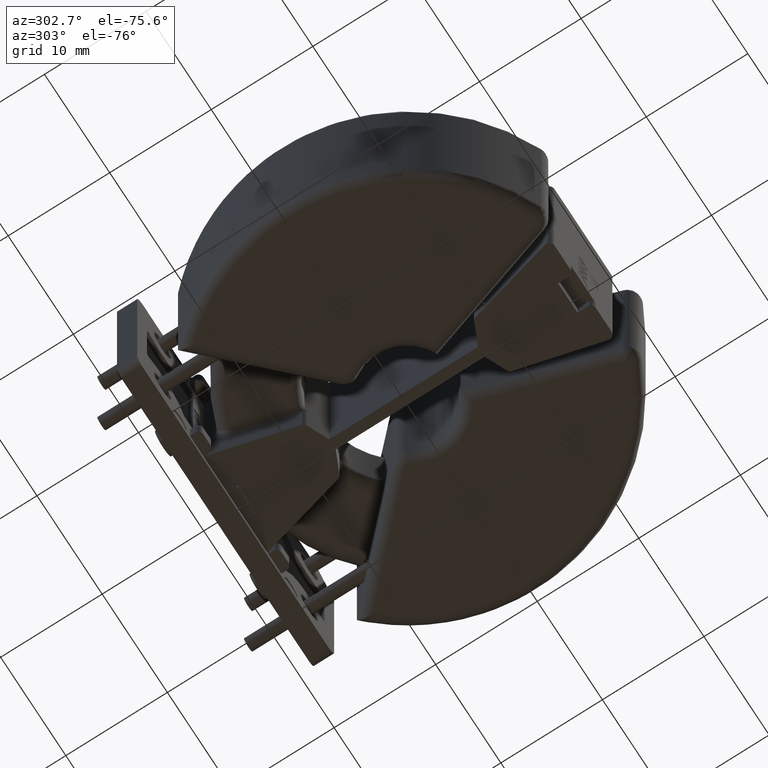
[diagram: clean part render]
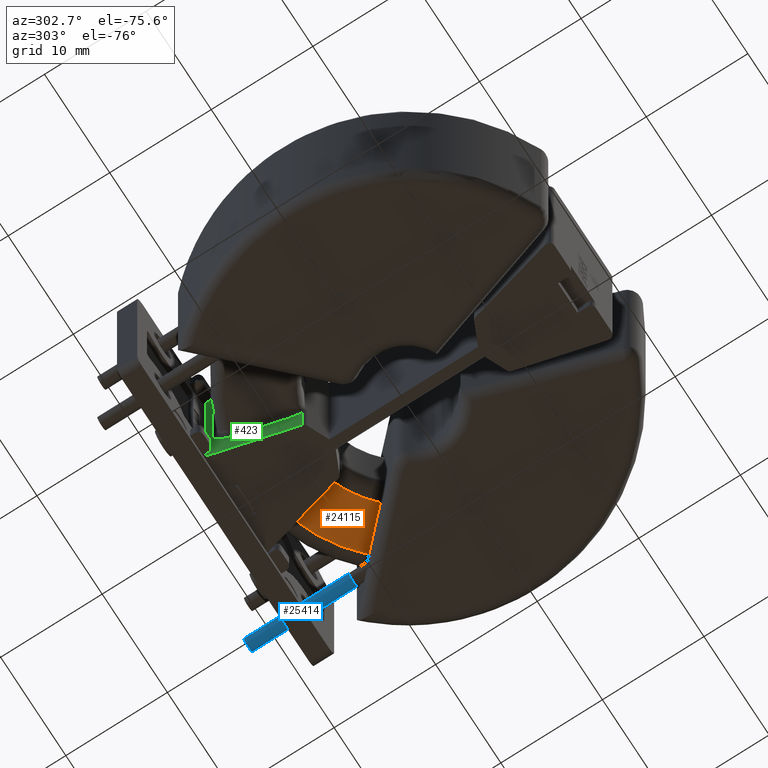
[diagram: same view with three faces highlighted in distinct colors, each labeled with its STEP entity id]
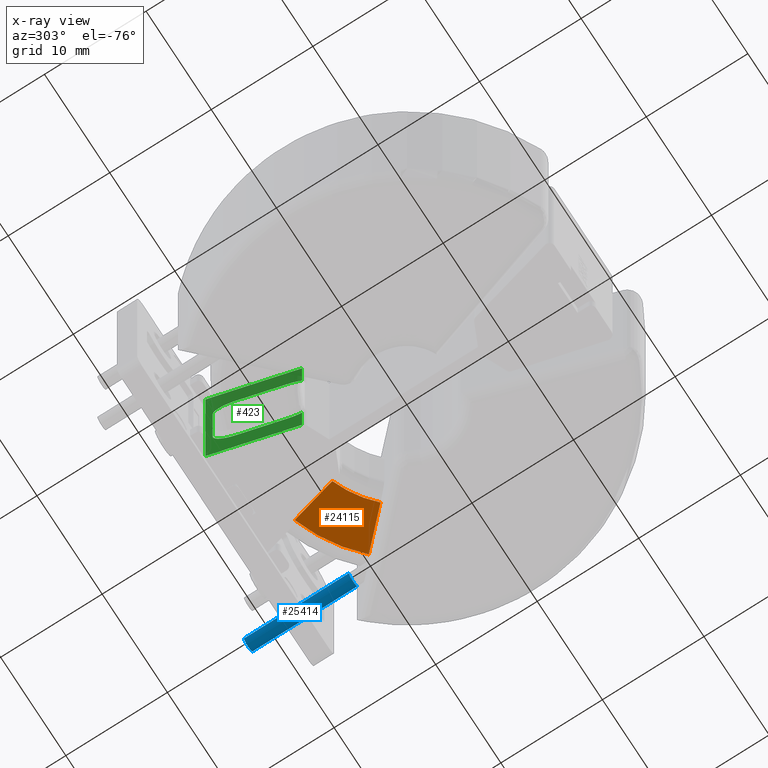
[diagram: x-ray of the same camera — body ghosted, the three highlighted faces saturated]
A machine part, auxiliary view with three faces highlighted in distinct colors.
The next image is the same camera in x-ray (body ghosted, the three faces saturated) — at least one of them is partly hidden behind the body in this view.
Their STEP definitions:

[orange] entity #24115 — the highlighted planar face has unit normal (0, 0, -1).
#593 = DIRECTION ( 'NONE',  ( -0.7071067811865435759, -0.7071067811865515695, 0.000000000000000000 ) ) ;
#1442 = DIRECTION ( 'NONE',  ( -1.000000000000000000, 0.000000000000000000, 0.000000000000000000 ) ) ;
#1764 = EDGE_CURVE ( 'NONE', #22190, #21242, #19601, .T. ) ;
#1934 = VECTOR ( 'NONE', #593, 999.9999999999998863 ) ;
#2049 = ORIENTED_EDGE ( 'NONE', *, *, #5605, .T. ) ;
#2071 = ORIENTED_EDGE ( 'NONE', *, *, #1764, .T. ) ;
#5055 = CARTESIAN_POINT ( 'NONE',  ( 7.247844507162072070, 7.247844507162154670, -0.1000000000000000472 ) ) ;
#5486 = DIRECTION ( 'NONE',  ( -0.000000000000000000, -0.000000000000000000, 1.000000000000000000 ) ) ;
#5605 = EDGE_CURVE ( 'NONE', #21242, #7491, #19217, .T. ) ;
#6032 = ORIENTED_EDGE ( 'NONE', *, *, #27267, .T. ) ;
#6120 = DIRECTION ( 'NONE',  ( 0.000000000000000000, 0.000000000000000000, -1.000000000000000000 ) ) ;
#7377 = CARTESIAN_POINT ( 'NONE',  ( 4.673326229108661245, 14.04279252699850566, -0.1000000000000000472 ) ) ;
#7491 = VERTEX_POINT ( 'NONE', #5055 ) ;
#8042 = PLANE ( 'NONE',  #14214 ) ;
#8531 = VERTEX_POINT ( 'NONE', #25008 ) ;
#8921 = EDGE_LOOP ( 'NONE', ( #2071, #2049, #6032, #17223 ) ) ;
#9912 = LINE ( 'NONE', #16119, #13016 ) ;
#10033 = CARTESIAN_POINT ( 'NONE',  ( 0.000000000000000000, 0.000000000000000000, -0.1000000000000000472 ) ) ;
#10146 = CARTESIAN_POINT ( 'NONE',  ( 10.46518036156084541, 10.46518036156096443, -0.09999999999999993616 ) ) ;
#10434 = AXIS2_PLACEMENT_3D ( 'NONE', #10033, #5486, #22034 ) ;
#13016 = VECTOR ( 'NONE', #18733, 999.9999999999998863 ) ;
#14214 = AXIS2_PLACEMENT_3D ( 'NONE', #22542, #6120, #24635 ) ;
#14326 = AXIS2_PLACEMENT_3D ( 'NONE', #17860, #18267, #1442 ) ;
#15065 = CARTESIAN_POINT ( 'NONE',  ( 0.000000000000000000, 0.000000000000000000, -0.1000000000000000056 ) ) ;
#16119 = CARTESIAN_POINT ( 'NONE',  ( 1.028569088582702129, -0.2620706320949978685, -0.1000000000000000056 ) ) ;
#16569 = CIRCLE ( 'NONE', #10434, 10.25000000000000178 ) ;
#17223 = ORIENTED_EDGE ( 'NONE', *, *, #21028, .T. ) ;
#17860 = CARTESIAN_POINT ( 'NONE',  ( 0.000000000000000000, 0.000000000000000000, -0.1000000000000000472 ) ) ;
#18267 = DIRECTION ( 'NONE',  ( 0.000000000000000000, 0.000000000000000000, -1.000000000000000000 ) ) ;
#18733 = DIRECTION ( 'NONE',  ( 0.2469031679626432496, 0.9690401568820617983, 0.000000000000000000 ) ) ;
#19217 = LINE ( 'NONE', #15065, #1934 ) ;
#19601 = CIRCLE ( 'NONE', #14326, 14.80000000000000249 ) ;
#21028 = EDGE_CURVE ( 'NONE', #8531, #22190, #9912, .T. ) ;
#21242 = VERTEX_POINT ( 'NONE', #10146 ) ;
#22034 = DIRECTION ( 'NONE',  ( -1.000000000000000000, 4.440892098500626951E-15, 0.000000000000000000 ) ) ;
#22190 = VERTEX_POINT ( 'NONE', #7377 ) ;
#22542 = CARTESIAN_POINT ( 'NONE',  ( 0.000000000000000000, 0.000000000000000000, -0.1000000000000000056 ) ) ;
#24115 = ADVANCED_FACE ( 'NONE', ( #26848 ), #8042, .T. ) ;
#24635 = DIRECTION ( 'NONE',  ( -1.000000000000000000, 0.000000000000000000, -0.000000000000000000 ) ) ;
#25008 = CARTESIAN_POINT ( 'NONE',  ( 3.545720725639769366, 9.617191093857323736, -0.1000000000000000472 ) ) ;
#26848 = FACE_OUTER_BOUND ( 'NONE', #8921, .T. ) ;
#27267 = EDGE_CURVE ( 'NONE', #7491, #8531, #16569, .T. ) ;

[blue] entity #25414 — the highlighted cylindrical surface (edge-blend (fillet) strip) has radius 0.65 mm, axis along (-0, 1, -0).
#68 = DIRECTION ( 'NONE',  ( -1.000000000000000000, 0.000000000000000000, 0.000000000000000000 ) ) ;
#3985 = CARTESIAN_POINT ( 'NONE',  ( 11.89999999999999503, 22.84499999999997755, -1.625000000000011324 ) ) ;
#4868 = CARTESIAN_POINT ( 'NONE',  ( 10.60000000000000320, -18.35200000000001452, -1.625000000000009326 ) ) ;
#6665 = DIRECTION ( 'NONE',  ( -1.589399859959779658E-16, 1.000000000000000000, -6.938893903907230843E-17 ) ) ;
#7873 = EDGE_LOOP ( 'NONE', ( #15329, #11296, #12122, #13821 ) ) ;
#8122 = CARTESIAN_POINT ( 'NONE',  ( 11.89999999999999680, 12.50000000000000178, -1.625000000000010880 ) ) ;
#8826 = CARTESIAN_POINT ( 'NONE',  ( 10.59999999999999787, 12.50000000000000178, -1.625000000000011324 ) ) ;
#8838 = VERTEX_POINT ( 'NONE', #8826 ) ;
#8875 = DIRECTION ( 'NONE',  ( 1.000000000000000000, 0.000000000000000000, 0.000000000000000000 ) ) ;
#9248 = FACE_OUTER_BOUND ( 'NONE', #7873, .T. ) ;
#9389 = VERTEX_POINT ( 'NONE', #8122 ) ;
#10666 = EDGE_CURVE ( 'NONE', #16779, #25759, #25032, .T. ) ;
#10939 = CARTESIAN_POINT ( 'NONE',  ( 11.90000000000000213, -18.35200000000001452, -1.625000000000009104 ) ) ;
#11016 = EDGE_CURVE ( 'NONE', #9389, #16779, #19211, .T. ) ;
#11194 = CARTESIAN_POINT ( 'NONE',  ( 11.24999999999999822, 12.50000000000000178, -1.625000000000010880 ) ) ;
#11296 = ORIENTED_EDGE ( 'NONE', *, *, #15568, .T. ) ;
#11817 = AXIS2_PLACEMENT_3D ( 'NONE', #11194, #17132, #8875 ) ;
#12122 = ORIENTED_EDGE ( 'NONE', *, *, #24320, .T. ) ;
#12451 = CARTESIAN_POINT ( 'NONE',  ( 10.59999999999999609, 22.84499999999997755, -1.625000000000011768 ) ) ;
#12769 = CARTESIAN_POINT ( 'NONE',  ( 11.24999999999999645, 22.84499999999997755, -1.625000000000011768 ) ) ;
#13233 = CARTESIAN_POINT ( 'NONE',  ( 11.25000000000000355, -18.35200000000001452, -1.625000000000009326 ) ) ;
#13821 = ORIENTED_EDGE ( 'NONE', *, *, #10666, .F. ) ;
#15198 = DIRECTION ( 'NONE',  ( -1.589399859959779658E-16, 1.000000000000000000, -6.938893903907230843E-17 ) ) ;
#15329 = ORIENTED_EDGE ( 'NONE', *, *, #11016, .F. ) ;
#15568 = EDGE_CURVE ( 'NONE', #9389, #8838, #23711, .T. ) ;
#15746 = AXIS2_PLACEMENT_3D ( 'NONE', #12769, #25612, #68 ) ;
#16779 = VERTEX_POINT ( 'NONE', #3985 ) ;
#17132 = DIRECTION ( 'NONE',  ( -1.589399859959779658E-16, 1.000000000000000000, -6.938893903907230843E-17 ) ) ;
#17509 = DIRECTION ( 'NONE',  ( -1.000000000000000000, 0.000000000000000000, 0.000000000000000000 ) ) ;
#19074 = LINE ( 'NONE', #4868, #19076 ) ;
#19076 = VECTOR ( 'NONE', #6665, 1000.000000000000000 ) ;
#19211 = LINE ( 'NONE', #10939, #24045 ) ;
#21648 = DIRECTION ( 'NONE',  ( -1.589399859959779658E-16, 1.000000000000000000, -6.938893903907230843E-17 ) ) ;
#22601 = AXIS2_PLACEMENT_3D ( 'NONE', #13233, #21648, #17509 ) ;
#23711 = CIRCLE ( 'NONE', #11817, 0.6499999999999995781 ) ;
#24045 = VECTOR ( 'NONE', #15198, 1000.000000000000000 ) ;
#24320 = EDGE_CURVE ( 'NONE', #8838, #25759, #19074, .T. ) ;
#25032 = CIRCLE ( 'NONE', #15746, 0.6499999999999995781 ) ;
#25414 = ADVANCED_FACE ( 'NONE', ( #9248 ), #25543, .T. ) ;
#25543 = CYLINDRICAL_SURFACE ( 'NONE', #22601, 0.6499999999999995781 ) ;
#25612 = DIRECTION ( 'NONE',  ( -1.589399859959779658E-16, 1.000000000000000000, -6.938893903907230843E-17 ) ) ;
#25759 = VERTEX_POINT ( 'NONE', #12451 ) ;

[green] entity #423 — the highlighted planar face has unit normal (0.969, 0.2469, 0).
#101 = CARTESIAN_POINT ( 'NONE',  ( -4.188806150667630845, 14.16624411097982872, 10.85000000000000320 ) ) ;
#236 = AXIS2_PLACEMENT_3D ( 'NONE', #8942, #6856, #25776 ) ;
#349 = CARTESIAN_POINT ( 'NONE',  ( -4.621073833220896709, 15.86279886308345688, 0.3916065438530442200 ) ) ;
#423 = ADVANCED_FACE ( 'NONE', ( #4454 ), #23287, .F. ) ;
#746 = EDGE_CURVE ( 'NONE', #23014, #12360, #15622, .T. ) ;
#1386 = VERTEX_POINT ( 'NONE', #26747 ) ;
#1557 = DIRECTION ( 'NONE',  ( 0.2469031679626433329, -0.9690401568820617983, -1.121038771459853906E-44 ) ) ;
#1588 = LINE ( 'NONE', #26964, #22584 ) ;
#1722 = B_SPLINE_CURVE_WITH_KNOTS ( 'NONE', 3,
 ( #9165, #13414, #5279, #20035, #7341, #21695 ),
 .UNSPECIFIED., .F., .F.,
 ( 4, 2, 4 ),
 ( 0.000000000000000000, 0.0006532048347554016317, 0.001306409669510803263 ),
 .UNSPECIFIED. ) ;
#1807 = VERTEX_POINT ( 'NONE', #25038 ) ;
#1868 = CARTESIAN_POINT ( 'NONE',  ( -4.841149853220117372, 16.72654841601868014, 14.55000000000000249 ) ) ;
#2454 = CARTESIAN_POINT ( 'NONE',  ( -4.437905923757134552, 15.14390545565103530, 10.59777708064334334 ) ) ;
#2601 = CARTESIAN_POINT ( 'NONE',  ( -2.850161209839293441, 8.912359706929025904, -0.4237193726595783749 ) ) ;
#2687 = CARTESIAN_POINT ( 'NONE',  ( -4.584146092048441368, 15.71786567168564197, 0.1686847796261111421 ) ) ;
#2722 = CARTESIAN_POINT ( 'NONE',  ( -3.006667621784224309, 9.526612651658799891, -0.5999999999999999778 ) ) ;
#2797 = CARTESIAN_POINT ( 'NONE',  ( -4.841149853220116483, 16.72654841601868014, -4.299999999999998046 ) ) ;
#2820 = VECTOR ( 'NONE', #17698, 999.9999999999998863 ) ;
#3497 = VERTEX_POINT ( 'NONE', #8936 ) ;
#3947 = DIRECTION ( 'NONE',  ( -0.2469031679626436104, 0.9690401568820616873, -0.000000000000000000 ) ) ;
#4335 = VECTOR ( 'NONE', #13720, 1000.000000000000000 ) ;
#4454 = FACE_OUTER_BOUND ( 'NONE', #11036, .T. ) ;
#4890 = CARTESIAN_POINT ( 'NONE',  ( -4.436374221333937662, 15.13789386345998267, -0.3368065490180052746 ) ) ;
#5264 = ORIENTED_EDGE ( 'NONE', *, *, #5798, .T. ) ;
#5279 = CARTESIAN_POINT ( 'NONE',  ( -2.953615912103145558, 9.318396461091348115, 10.81475968378430252 ) ) ;
#5560 = CARTESIAN_POINT ( 'NONE',  ( -4.841149853220117372, 16.72654841601868014, 14.55000000000000249 ) ) ;
#5677 = B_SPLINE_CURVE_WITH_KNOTS ( 'NONE', 3,
 ( #15395, #15263, #21364, #19000, #13077, #17061, #25783, #6864, #17478, #11002, #2454, #25521, #6597, #101 ),
 .UNSPECIFIED., .F., .F.,
 ( 4, 2, 2, 2, 2, 2, 4 ),
 ( 0.000000000000000000, 0.0003909921294472850305, 0.0007819842588945700610, 0.001172976388341855037, 0.001563968517789140122, 0.002345952776683710075, 0.003127937035578280244 ),
 .UNSPECIFIED. ) ;
#5683 = ORIENTED_EDGE ( 'NONE', *, *, #8419, .F. ) ;
#5798 = EDGE_CURVE ( 'NONE', #1807, #9065, #9175, .T. ) ;
#5831 = LINE ( 'NONE', #5560, #16417 ) ;
#5876 = LINE ( 'NONE', #10144, #13132 ) ;
#6597 = CARTESIAN_POINT ( 'NONE',  ( -4.254087373202438016, 14.42245842628643615, 10.85000000000000497 ) ) ;
#6688 = CARTESIAN_POINT ( 'NONE',  ( -4.316703977752629484, 14.66821470716947928, -0.5364716515452893075 ) ) ;
#6856 = DIRECTION ( 'NONE',  ( 0.9690401568820616873, 0.2469031679626436104, 0.000000000000000000 ) ) ;
#6864 = CARTESIAN_POINT ( 'NONE',  ( -4.582435521455710870, 15.71115206161243272, 10.06951089924231901 ) ) ;
#6865 = CARTESIAN_POINT ( 'NONE',  ( -2.759229855072620197, 8.555474313291922428, -0.1882030636851097782 ) ) ;
#7341 = CARTESIAN_POINT ( 'NONE',  ( -2.802646659601715662, 8.725875638715805849, 10.57185861638387614 ) ) ;
#7741 = VERTEX_POINT ( 'NONE', #19911 ) ;
#7893 = LINE ( 'NONE', #14229, #9091 ) ;
#8021 = CARTESIAN_POINT ( 'NONE',  ( -3.061200647198738078, 9.740642677838646790, 10.85000000000000320 ) ) ;
#8023 = EDGE_CURVE ( 'NONE', #1386, #21448, #1588, .T. ) ;
#8233 = VECTOR ( 'NONE', #8548, 1000.000000000000000 ) ;
#8419 = EDGE_CURVE ( 'NONE', #13614, #7741, #5831, .T. ) ;
#8548 = DIRECTION ( 'NONE',  ( -0.2469031679626436104, 0.9690401568820616873, 0.000000000000000000 ) ) ;
#8776 = CARTESIAN_POINT ( 'NONE',  ( -4.670572672219313048, 16.05707082445319145, 0.8728455921648021754 ) ) ;
#8936 = CARTESIAN_POINT ( 'NONE',  ( -3.061200647198735858, 9.740642677838646790, -0.6000000000000000888 ) ) ;
#8942 = CARTESIAN_POINT ( 'NONE',  ( -5.000000000000000000, 17.35000000000000142, -4.499999999999998224 ) ) ;
#9065 = VERTEX_POINT ( 'NONE', #8021 ) ;
#9091 = VECTOR ( 'NONE', #24862, 1000.000000000000000 ) ;
#9165 = CARTESIAN_POINT ( 'NONE',  ( -3.061200647198738078, 9.740642677838646790, 10.85000000000000320 ) ) ;
#9175 = LINE ( 'NONE', #19636, #2820 ) ;
#10144 = CARTESIAN_POINT ( 'NONE',  ( -5.000000000000000000, 17.35000000000000142, -0.5999999999999998668 ) ) ;
#10370 = ORIENTED_EDGE ( 'NONE', *, *, #16901, .T. ) ;
#10426 = CARTESIAN_POINT ( 'NONE',  ( -4.188806150667629957, 14.16624411097982872, -0.6000000000000000888 ) ) ;
#10596 = ORIENTED_EDGE ( 'NONE', *, *, #17626, .T. ) ;
#10975 = CARTESIAN_POINT ( 'NONE',  ( -4.683735089101559446, 16.10873039053234734, 6.850000000000002309 ) ) ;
#11002 = CARTESIAN_POINT ( 'NONE',  ( -4.493071650729866029, 15.36041869507717550, 10.44894055587113613 ) ) ;
#11036 = EDGE_LOOP ( 'NONE', ( #17314, #19905, #16268, #21278, #22887, #18755, #10370, #5264, #10596, #17554, #5683, #23374 ) ) ;
#11095 = CARTESIAN_POINT ( 'NONE',  ( -4.683735089101558557, 16.10873039053234734, 1.400000000000000133 ) ) ;
#11158 = CARTESIAN_POINT ( 'NONE',  ( -2.759229855072619753, 8.555474313291922428, -4.299999999999998046 ) ) ;
#11417 = VERTEX_POINT ( 'NONE', #12490 ) ;
#12360 = VERTEX_POINT ( 'NONE', #24830 ) ;
#12490 = CARTESIAN_POINT ( 'NONE',  ( -2.759229855072623305, 8.555474313291922428, 10.43820306368511375 ) ) ;
#13028 = CARTESIAN_POINT ( 'NONE',  ( -4.253547126702831527, 14.42033807863334083, -0.5870863681833395908 ) ) ;
#13077 = CARTESIAN_POINT ( 'NONE',  ( -4.658418835593193918, 16.00936971211802984, 9.495010348511398135 ) ) ;
#13132 = VECTOR ( 'NONE', #3947, 1000.000000000000000 ) ;
#13180 = CARTESIAN_POINT ( 'NONE',  ( -4.490143142294678924, 15.34892494918123518, -0.1920389866375419308 ) ) ;
#13414 = CARTESIAN_POINT ( 'NONE',  ( -3.006667571913697046, 9.526612455928034962, 10.85000000000000320 ) ) ;
#13608 = EDGE_CURVE ( 'NONE', #3497, #23014, #5876, .T. ) ;
#13614 = VERTEX_POINT ( 'NONE', #1868 ) ;
#13720 = DIRECTION ( 'NONE',  ( -4.256270054397946562E-44, -0.000000000000000000, 1.000000000000000000 ) ) ;
#14020 = DIRECTION ( 'NONE',  ( 0.000000000000000000, -0.000000000000000000, 1.000000000000000000 ) ) ;
#14229 = CARTESIAN_POINT ( 'NONE',  ( -4.841149853220117372, 16.72654841601868014, -4.499999999999998224 ) ) ;
#14456 = EDGE_CURVE ( 'NONE', #11417, #7741, #21721, .T. ) ;
#15081 = CARTESIAN_POINT ( 'NONE',  ( -4.683735089101559446, 16.10873039053235090, 1.135572393035714001 ) ) ;
#15263 = CARTESIAN_POINT ( 'NONE',  ( -4.683735089101558557, 16.10873039053234734, 8.982208586367617542 ) ) ;
#15395 = CARTESIAN_POINT ( 'NONE',  ( -4.683735089101559446, 16.10873039053234734, 8.850000000000003197 ) ) ;
#15482 = CARTESIAN_POINT ( 'NONE',  ( -2.759229855072620197, 8.555474313291922428, -0.1882030636851097782 ) ) ;
#15622 = B_SPLINE_CURVE_WITH_KNOTS ( 'NONE', 3,
 ( #25742, #21195, #13028, #6688, #17020, #19235, #4890, #13180, #25484, #2687, #349, #8776, #15081, #11095 ),
 .UNSPECIFIED., .F., .F.,
 ( 4, 2, 2, 2, 2, 2, 4 ),
 ( 0.000000000000000000, 0.0003909930606069283456, 0.0007819861212138566912, 0.001172979181820784983, 0.001563972242427713382, 0.002345958363641569965, 0.003127944484855426765 ),
 .UNSPECIFIED. ) ;
#16268 = ORIENTED_EDGE ( 'NONE', *, *, #19012, .T. ) ;
#16417 = VECTOR ( 'NONE', #1557, 999.9999999999998863 ) ;
#16901 = EDGE_CURVE ( 'NONE', #19628, #1807, #5677, .T. ) ;
#17020 = CARTESIAN_POINT ( 'NONE',  ( -4.348086114120393475, 14.79138263004406006, -0.4981643110206377956 ) ) ;
#17061 = CARTESIAN_POINT ( 'NONE',  ( -4.633565831516789579, 15.91182718494869519, 9.737245693266636692 ) ) ;
#17314 = ORIENTED_EDGE ( 'NONE', *, *, #21575, .F. ) ;
#17478 = CARTESIAN_POINT ( 'NONE',  ( -4.561534916018867847, 15.62912182223328372, 10.17238767555580026 ) ) ;
#17554 = ORIENTED_EDGE ( 'NONE', *, *, #14456, .T. ) ;
#17626 = EDGE_CURVE ( 'NONE', #9065, #11417, #1722, .T. ) ;
#17698 = DIRECTION ( 'NONE',  ( 0.2469031679626433606, -0.9690401568820617983, -1.121038771459853906E-44 ) ) ;
#17854 = CARTESIAN_POINT ( 'NONE',  ( -2.759229855072623305, 8.555474313291922428, 14.75000000000000355 ) ) ;
#18755 = ORIENTED_EDGE ( 'NONE', *, *, #19979, .T. ) ;
#19000 = CARTESIAN_POINT ( 'NONE',  ( -4.667942551483701408, 16.04674818407847070, 9.367937289662238598 ) ) ;
#19012 = EDGE_CURVE ( 'NONE', #21448, #3497, #25020, .T. ) ;
#19235 = CARTESIAN_POINT ( 'NONE',  ( -4.407968168635127526, 15.02640640871893396, -0.3980707324540634362 ) ) ;
#19550 = CARTESIAN_POINT ( 'NONE',  ( -3.061200647198735858, 9.740642677838646790, -0.6000000000000000888 ) ) ;
#19628 = VERTEX_POINT ( 'NONE', #27307 ) ;
#19636 = CARTESIAN_POINT ( 'NONE',  ( -2.700000000000000178, 8.323010272731858450, 10.85000000000000320 ) ) ;
#19905 = ORIENTED_EDGE ( 'NONE', *, *, #8023, .T. ) ;
#19911 = CARTESIAN_POINT ( 'NONE',  ( -2.759229855072623305, 8.555474313291922428, 14.55000000000000249 ) ) ;
#19979 = EDGE_CURVE ( 'NONE', #12360, #19628, #25496, .T. ) ;
#20035 = CARTESIAN_POINT ( 'NONE',  ( -2.850455599862213862, 8.913515122456278306, 10.67426998739443533 ) ) ;
#21195 = CARTESIAN_POINT ( 'NONE',  ( -4.221447941313654084, 14.29435589743257040, -0.5999999999999999778 ) ) ;
#21278 = ORIENTED_EDGE ( 'NONE', *, *, #13608, .T. ) ;
#21364 = CARTESIAN_POINT ( 'NONE',  ( -4.680523805111486801, 16.09612681331943307, 9.112201345127122210 ) ) ;
#21365 = CARTESIAN_POINT ( 'NONE',  ( -2.953302779842052139, 9.317167486437375246, -0.5644820603775180246 ) ) ;
#21448 = VERTEX_POINT ( 'NONE', #15482 ) ;
#21575 = EDGE_CURVE ( 'NONE', #1386, #24337, #21649, .T. ) ;
#21649 = LINE ( 'NONE', #11158, #8233 ) ;
#21695 = CARTESIAN_POINT ( 'NONE',  ( -2.759229855072623305, 8.555474313291922428, 10.43820306368511375 ) ) ;
#21721 = LINE ( 'NONE', #17854, #4335 ) ;
#21730 = VECTOR ( 'NONE', #23135, 1000.000000000000000 ) ;
#22584 = VECTOR ( 'NONE', #14020, 1000.000000000000000 ) ;
#22887 = ORIENTED_EDGE ( 'NONE', *, *, #746, .T. ) ;
#23014 = VERTEX_POINT ( 'NONE', #10426 ) ;
#23135 = DIRECTION ( 'NONE',  ( -0.000000000000000000, 0.000000000000000000, 1.000000000000000000 ) ) ;
#23287 = PLANE ( 'NONE',  #236 ) ;
#23374 = ORIENTED_EDGE ( 'NONE', *, *, #26909, .T. ) ;
#24337 = VERTEX_POINT ( 'NONE', #2797 ) ;
#24830 = CARTESIAN_POINT ( 'NONE',  ( -4.683735089101558557, 16.10873039053234734, 1.400000000000000133 ) ) ;
#24862 = DIRECTION ( 'NONE',  ( -0.000000000000000000, 0.000000000000000000, -1.000000000000000000 ) ) ;
#25020 = B_SPLINE_CURVE_WITH_KNOTS ( 'NONE', 3,
 ( #6865, #25382, #2601, #21365, #2722, #19550 ),
 .UNSPECIFIED., .F., .F.,
 ( 4, 2, 4 ),
 ( 0.000000000000000000, 0.0006531979792092669490, 0.001306395958418533898 ),
 .UNSPECIFIED. ) ;
#25038 = CARTESIAN_POINT ( 'NONE',  ( -4.188806150667630845, 14.16624411097982872, 10.85000000000000320 ) ) ;
#25382 = CARTESIAN_POINT ( 'NONE',  ( -2.802646867159386268, 8.725876453333622607, -0.3218592553354430175 ) ) ;
#25484 = CARTESIAN_POINT ( 'NONE',  ( -4.515620900735189736, 15.44891949862311797, -0.1077212887808851605 ) ) ;
#25496 = LINE ( 'NONE', #10975, #21730 ) ;
#25521 = CARTESIAN_POINT ( 'NONE',  ( -4.318965116916340108, 14.67708917673589397, 10.79709101559284257 ) ) ;
#25742 = CARTESIAN_POINT ( 'NONE',  ( -4.188806150667629957, 14.16624411097982872, -0.6000000000000000888 ) ) ;
#25776 = DIRECTION ( 'NONE',  ( -0.2469031679626436104, 0.9690401568820616873, 0.000000000000000000 ) ) ;
#25783 = CARTESIAN_POINT ( 'NONE',  ( -4.618358866701954391, 15.85214322183285596, 9.852122680838988344 ) ) ;
#26747 = CARTESIAN_POINT ( 'NONE',  ( -2.759229855072619308, 8.555474313291922428, -4.299999999999998046 ) ) ;
#26909 = EDGE_CURVE ( 'NONE', #13614, #24337, #7893, .T. ) ;
#26964 = CARTESIAN_POINT ( 'NONE',  ( -2.759229855072620197, 8.555474313291922428, -4.499999999999998224 ) ) ;
#27307 = CARTESIAN_POINT ( 'NONE',  ( -4.683735089101559446, 16.10873039053234734, 8.850000000000003197 ) ) ;